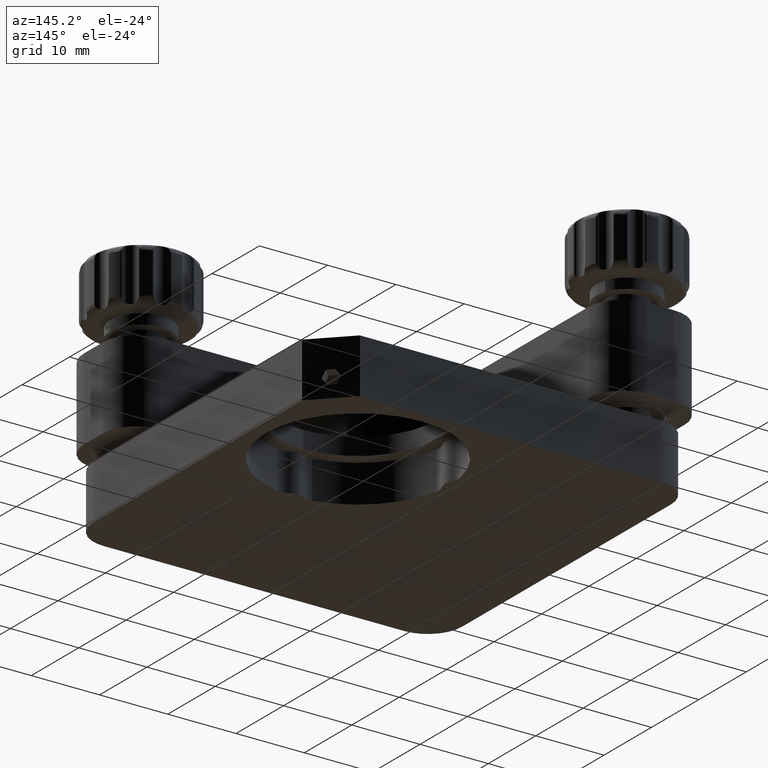
[diagram: clean part render]
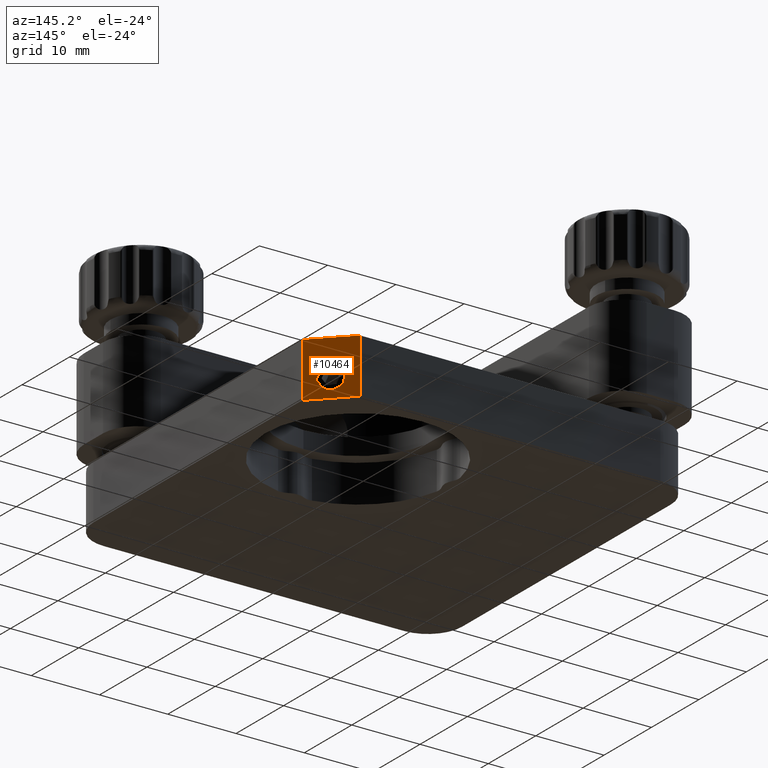
[diagram: same view with one face highlighted and labeled with its STEP entity id]
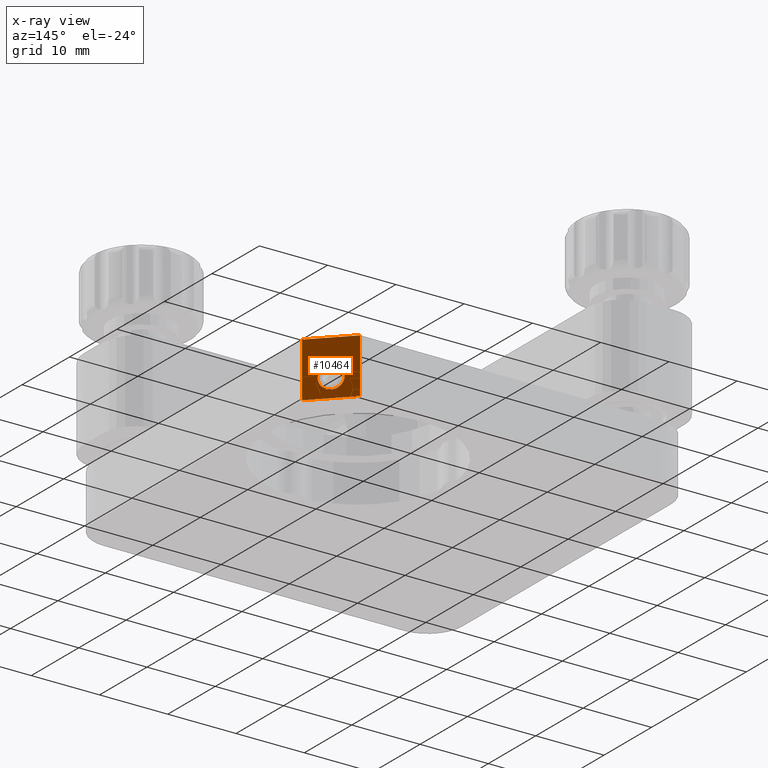
[diagram: x-ray of the same camera — body ghosted, the highlighted face saturated]
A machine part, auxiliary view. The second image highlights one B-rep face of the part: STEP entity #10464.
The next image is the same camera in x-ray: the body ghosted, the highlighted face saturated — about 0% of this face is hidden behind the body in this view.
In plain terms, the highlighted planar face has unit normal (0.7071, 0.7071, 0).
Its self-contained STEP definition (entity closure, byte-faithful):
#752 = CARTESIAN_POINT ( 'NONE',  ( 24.33327381104221100, 26.66672618895781000, -14.19999999999999900 ) ) ;
#974 = EDGE_CURVE ( 'NONE', #12362, #16122, #1756, .T. ) ;
#1325 = ORIENTED_EDGE ( 'NONE', *, *, #10664, .F. ) ;
#1736 = VERTEX_POINT ( 'NONE', #12348 ) ;
#1756 = LINE ( 'NONE', #11342, #10425 ) ;
#1790 = DIRECTION ( 'NONE',  ( -0.7071067811865474600, 0.7071067811865474600, 0.0000000000000000000 ) ) ;
#1798 = DIRECTION ( 'NONE',  ( 0.0000000000000000000, 0.0000000000000000000, 1.000000000000000000 ) ) ;
#3323 = CARTESIAN_POINT ( 'NONE',  ( 28.00000000000000000, 23.00000000000000000, -17.00000000000000000 ) ) ;
#3358 = ORIENTED_EDGE ( 'NONE', *, *, #974, .T. ) ;
#4349 = LINE ( 'NONE', #14250, #7592 ) ;
#5034 = LINE ( 'NONE', #3323, #8997 ) ;
#5284 = ORIENTED_EDGE ( 'NONE', *, *, #14646, .F. ) ;
#5499 = DIRECTION ( 'NONE',  ( -0.7071067811865464600, 0.7071067811865484600, 0.0000000000000000000 ) ) ;
#6127 = VERTEX_POINT ( 'NONE', #8076 ) ;
#7149 = CARTESIAN_POINT ( 'NONE',  ( 23.00000000000000000, 28.00000000000000000, -17.00000000000000000 ) ) ;
#7320 = CIRCLE ( 'NONE', #20485, 1.649999999999988800 ) ;
#7592 = VECTOR ( 'NONE', #12482, 1000.000000000000000 ) ;
#8076 = CARTESIAN_POINT ( 'NONE',  ( 26.66672618895780600, 24.33327381104221500, -14.19999999999999900 ) ) ;
#8098 = EDGE_LOOP ( 'NONE', ( #12851, #5284, #3358, #9303 ) ) ;
#8129 = CARTESIAN_POINT ( 'NONE',  ( 28.00000000000000000, 23.00000000000000000, -17.00000000000000000 ) ) ;
#8179 = EDGE_CURVE ( 'NONE', #6127, #12012, #7320, .T. ) ;
#8385 = EDGE_CURVE ( 'NONE', #16122, #1736, #4349, .T. ) ;
#8997 = VECTOR ( 'NONE', #1798, 1000.000000000000000 ) ;
#9019 = DIRECTION ( 'NONE',  ( -0.7071067811865464600, 0.7071067811865484600, 0.0000000000000000000 ) ) ;
#9303 = ORIENTED_EDGE ( 'NONE', *, *, #8385, .T. ) ;
#9428 = CARTESIAN_POINT ( 'NONE',  ( 28.00000000000000000, 23.00000000000000000, -9.000000000000000000 ) ) ;
#9462 = VECTOR ( 'NONE', #12326, 1000.000000000000100 ) ;
#9626 = FACE_OUTER_BOUND ( 'NONE', #8098, .T. ) ;
#10425 = VECTOR ( 'NONE', #1790, 1000.000000000000100 ) ;
#10464 = ADVANCED_FACE ( 'NONE', ( #16104, #9626 ), #12058, .T. ) ;
#10479 = DIRECTION ( 'NONE',  ( 0.7071067811865475700, 0.7071067811865475700, 0.0000000000000000000 ) ) ;
#10664 = EDGE_CURVE ( 'NONE', #12012, #6127, #20345, .T. ) ;
#11342 = CARTESIAN_POINT ( 'NONE',  ( 23.00000000000000000, 28.00000000000000000, -17.00000000000000000 ) ) ;
#12012 = VERTEX_POINT ( 'NONE', #752 ) ;
#12058 = PLANE ( 'NONE',  #19491 ) ;
#12326 = DIRECTION ( 'NONE',  ( -0.7071067811865474600, 0.7071067811865474600, 0.0000000000000000000 ) ) ;
#12348 = CARTESIAN_POINT ( 'NONE',  ( 23.00000000000000000, 28.00000000000000000, -9.000000000000000000 ) ) ;
#12362 = VERTEX_POINT ( 'NONE', #8129 ) ;
#12482 = DIRECTION ( 'NONE',  ( 0.0000000000000000000, 0.0000000000000000000, 1.000000000000000000 ) ) ;
#12851 = ORIENTED_EDGE ( 'NONE', *, *, #15753, .F. ) ;
#13698 = LINE ( 'NONE', #13811, #9462 ) ;
#13811 = CARTESIAN_POINT ( 'NONE',  ( 23.00000000000000000, 28.00000000000000000, -9.000000000000000000 ) ) ;
#13898 = CARTESIAN_POINT ( 'NONE',  ( 25.50000000000000700, 25.50000000000001100, -14.19999999999999900 ) ) ;
#14250 = CARTESIAN_POINT ( 'NONE',  ( 23.00000000000000000, 28.00000000000000000, -17.00000000000000000 ) ) ;
#14646 = EDGE_CURVE ( 'NONE', #12362, #16852, #5034, .T. ) ;
#15022 = CARTESIAN_POINT ( 'NONE',  ( 25.50000000000000700, 25.50000000000001100, -14.19999999999999900 ) ) ;
#15155 = DIRECTION ( 'NONE',  ( 0.7071067811865475700, 0.7071067811865475700, 0.0000000000000000000 ) ) ;
#15753 = EDGE_CURVE ( 'NONE', #16852, #1736, #13698, .T. ) ;
#16104 = FACE_BOUND ( 'NONE', #17538, .T. ) ;
#16122 = VERTEX_POINT ( 'NONE', #16499 ) ;
#16499 = CARTESIAN_POINT ( 'NONE',  ( 23.00000000000000000, 28.00000000000000000, -17.00000000000000000 ) ) ;
#16852 = VERTEX_POINT ( 'NONE', #9428 ) ;
#17538 = EDGE_LOOP ( 'NONE', ( #1325, #17720 ) ) ;
#17720 = ORIENTED_EDGE ( 'NONE', *, *, #8179, .F. ) ;
#17775 = AXIS2_PLACEMENT_3D ( 'NONE', #13898, #18624, #9019 ) ;
#18624 = DIRECTION ( 'NONE',  ( 0.7071067811865475700, 0.7071067811865475700, 0.0000000000000000000 ) ) ;
#19491 = AXIS2_PLACEMENT_3D ( 'NONE', #7149, #10479, #19957 ) ;
#19957 = DIRECTION ( 'NONE',  ( -0.7071067811865474600, 0.7071067811865474600, 0.0000000000000000000 ) ) ;
#20345 = CIRCLE ( 'NONE', #17775, 1.649999999999988800 ) ;
#20485 = AXIS2_PLACEMENT_3D ( 'NONE', #15022, #15155, #5499 ) ;